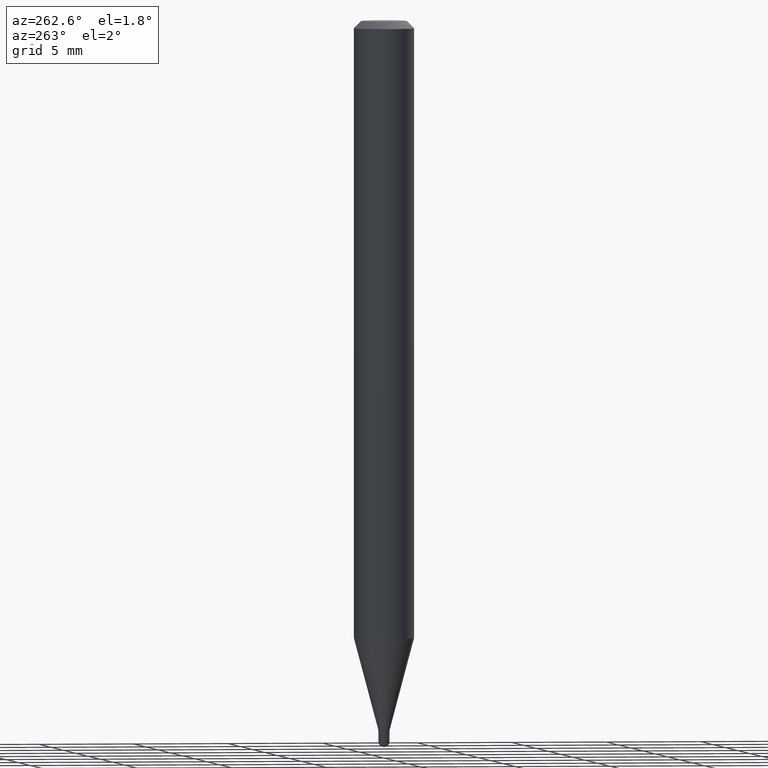
[diagram: clean part render]
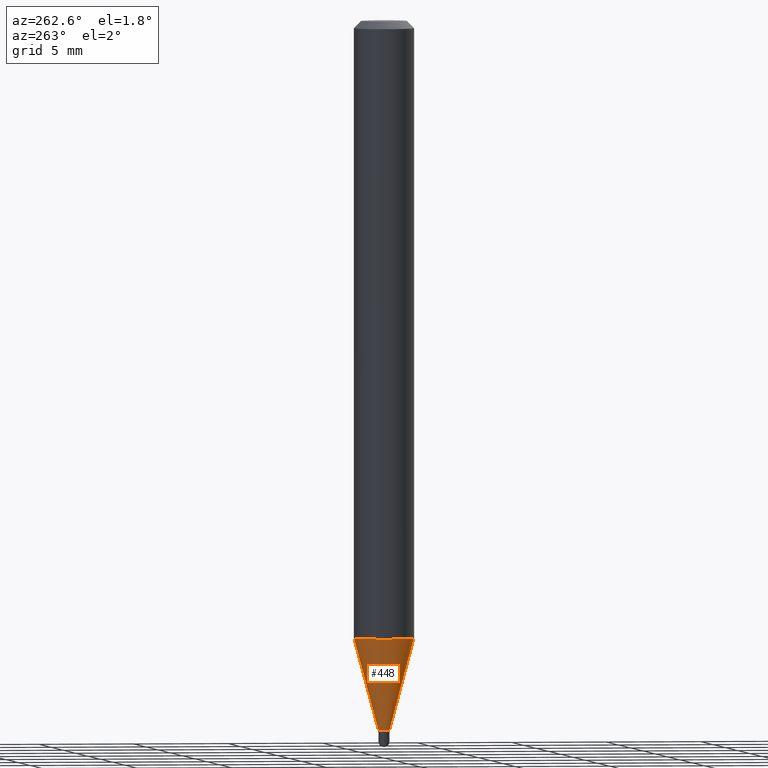
[diagram: same view with one face highlighted and labeled with its STEP entity id]
A machine part, auxiliary view. The second image highlights one B-rep face of the part: STEP entity #448.
In plain terms, the highlighted conical surface has half-angle 15 deg.
Its self-contained STEP definition (entity closure, byte-faithful):
#13 = EDGE_LOOP ( 'NONE', ( #107, #454, #409, #329 ) ) ;
#22 = CARTESIAN_POINT ( 'NONE',  ( -8.030407079335569920E-17, -0.01150000000000504091, -1.465500000000000025 ) ) ;
#23 = CARTESIAN_POINT ( 'NONE',  ( 3.118387021566951302E-29, -4.452202206703873729E-15, -1.275165408813993206 ) ) ;
#28 = AXIS2_PLACEMENT_3D ( 'NONE', #23, #496, #419 ) ;
#36 = VERTEX_POINT ( 'NONE', #459 ) ;
#45 = VECTOR ( 'NONE', #64, 39.37007874015748854 ) ;
#49 = CARTESIAN_POINT ( 'NONE',  ( -4.364351673553605587E-16, -0.06250000000000446865, -1.275165408813992762 ) ) ;
#52 = CARTESIAN_POINT ( 'NONE',  ( 3.583845788568584810E-29, -5.116749786988832142E-15, -1.465500000000000025 ) ) ;
#64 = DIRECTION ( 'NONE',  ( 1.839019923739649619E-15, 0.2588190451025318972, 0.9659258262890650926 ) ) ;
#71 = DIRECTION ( 'NONE',  ( -2.445476484864267913E-29, 3.491470342537585919E-15, 1.000000000000000000 ) ) ;
#102 = EDGE_CURVE ( 'NONE', #406, #363, #108, .T. ) ;
#107 = ORIENTED_EDGE ( 'NONE', *, *, #334, .F. ) ;
#108 = CIRCLE ( 'NONE', #187, 0.01149999999999992521 ) ;
#156 = DIRECTION ( 'NONE',  ( -2.445476484864267913E-29, 3.491470342537585919E-15, 1.000000000000000000 ) ) ;
#174 = DIRECTION ( 'NONE',  ( -1.807323732225379049E-15, -0.2588190451025252359, 0.9659258262890670910 ) ) ;
#187 = AXIS2_PLACEMENT_3D ( 'NONE', #502, #71, #510 ) ;
#189 = EDGE_CURVE ( 'NONE', #363, #215, #373, .T. ) ;
#193 = CARTESIAN_POINT ( 'NONE',  ( 2.629008122312704344E-16, 0.01149999999999480951, -1.465500000000000025 ) ) ;
#215 = VERTEX_POINT ( 'NONE', #49 ) ;
#228 = VECTOR ( 'NONE', #174, 39.37007874015748854 ) ;
#275 = CIRCLE ( 'NONE', #28, 0.06250000000000000000 ) ;
#280 = EDGE_CURVE ( 'NONE', #36, #215, #275, .T. ) ;
#282 = AXIS2_PLACEMENT_3D ( 'NONE', #52, #156, #465 ) ;
#288 = CARTESIAN_POINT ( 'NONE',  ( -8.030407079335569920E-17, -0.01150000000000504091, -1.465500000000000025 ) ) ;
#329 = ORIENTED_EDGE ( 'NONE', *, *, #280, .F. ) ;
#334 = EDGE_CURVE ( 'NONE', #406, #36, #399, .T. ) ;
#363 = VERTEX_POINT ( 'NONE', #288 ) ;
#367 = CONICAL_SURFACE ( 'NONE', #282, 0.01149999999999992521, 0.2617993877991575125 ) ;
#372 = FACE_OUTER_BOUND ( 'NONE', #13, .T. ) ;
#373 = LINE ( 'NONE', #22, #228 ) ;
#399 = LINE ( 'NONE', #414, #45 ) ;
#406 = VERTEX_POINT ( 'NONE', #193 ) ;
#409 = ORIENTED_EDGE ( 'NONE', *, *, #189, .T. ) ;
#414 = CARTESIAN_POINT ( 'NONE',  ( 8.171241461244680919E-17, 0.01149999999999480951, -1.465500000000000025 ) ) ;
#419 = DIRECTION ( 'NONE',  ( -6.982962677686265922E-15, -1.000000000000000000, 4.370956789862821150E-15 ) ) ;
#448 = ADVANCED_FACE ( 'NONE', ( #372 ), #367, .T. ) ;
#454 = ORIENTED_EDGE ( 'NONE', *, *, #102, .T. ) ;
#459 = CARTESIAN_POINT ( 'NONE',  ( 4.440892098500936776E-16, 0.06249999999999554523, -1.275165408813993428 ) ) ;
#465 = DIRECTION ( 'NONE',  ( -6.982962677686266711E-15, -1.000000000000000000, 0.000000000000000000 ) ) ;
#496 = DIRECTION ( 'NONE',  ( -2.445476484864267913E-29, 3.491470342537585919E-15, 1.000000000000000000 ) ) ;
#502 = CARTESIAN_POINT ( 'NONE',  ( 3.583845788568584810E-29, -5.116749786988832142E-15, -1.465500000000000025 ) ) ;
#510 = DIRECTION ( 'NONE',  ( -6.982962677686266711E-15, -1.000000000000000000, 0.000000000000000000 ) ) ;